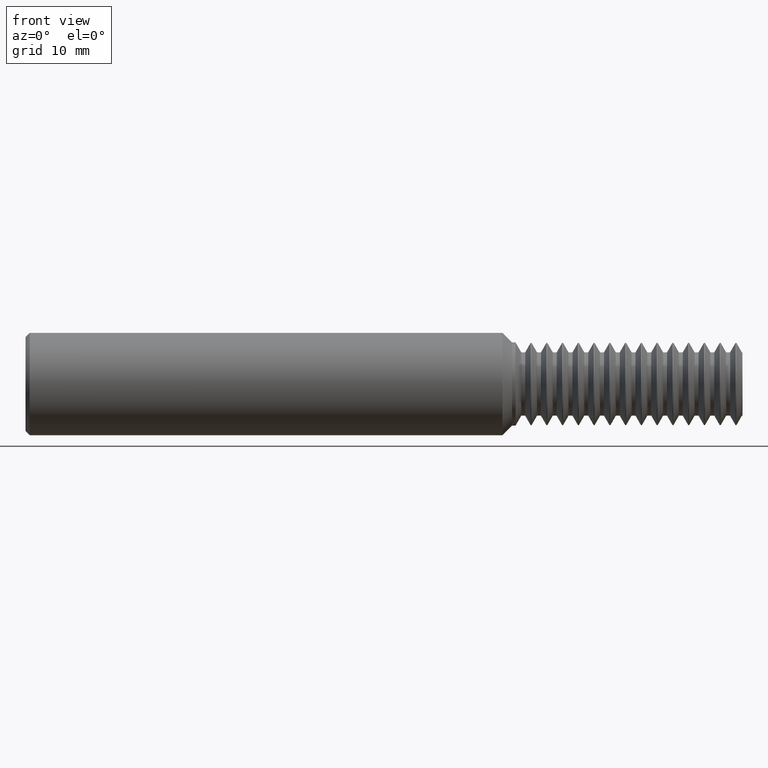
[diagram: clean part render]
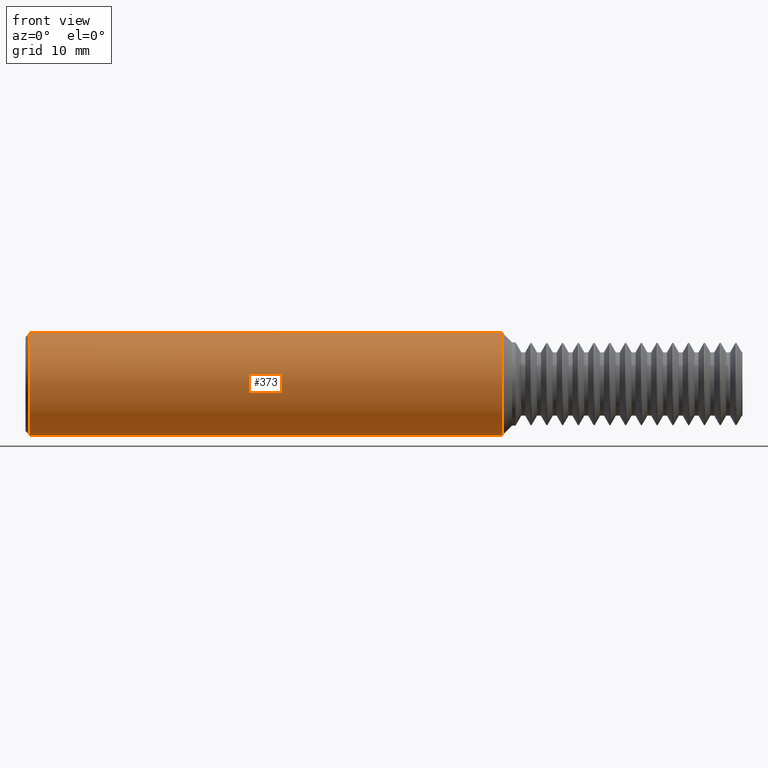
[diagram: same view with one face highlighted and labeled with its STEP entity id]
A machine part, front view. The second image highlights one B-rep face of the part: STEP entity #373.
In plain terms, the highlighted cylindrical surface (partial cylindrical patch) has radius 6.3462 mm, axis along (-1, -0, -0).
Its self-contained STEP definition (entity closure, byte-faithful):
#8 = VECTOR ( 'NONE', #1720, 39.37007874015748143 ) ;
#24 = ORIENTED_EDGE ( 'NONE', *, *, #677, .T. ) ;
#36 = VERTEX_POINT ( 'NONE', #2098 ) ;
#142 = ORIENTED_EDGE ( 'NONE', *, *, #2791, .T. ) ;
#145 = CARTESIAN_POINT ( 'NONE',  ( 0.01999999999999893183, 0.000000000000000000, 0.000000000000000000 ) ) ;
#208 = CARTESIAN_POINT ( 'NONE',  ( 2.328149999999999942, 0.000000000000000000, 0.2498499999999999888 ) ) ;
#300 = DIRECTION ( 'NONE',  ( 0.000000000000000000, 0.000000000000000000, -1.000000000000000000 ) ) ;
#370 = ORIENTED_EDGE ( 'NONE', *, *, #2487, .F. ) ;
#373 = ADVANCED_FACE ( 'NONE', ( #588 ), #2080, .T. ) ;
#415 = CARTESIAN_POINT ( 'NONE',  ( 0.01999999999999893183, 0.000000000000000000, -0.2498499999999999888 ) ) ;
#444 = EDGE_LOOP ( 'NONE', ( #370, #142, #24, #2977 ) ) ;
#574 = CIRCLE ( 'NONE', #997, 0.2498499999999999888 ) ;
#588 = FACE_OUTER_BOUND ( 'NONE', #444, .T. ) ;
#677 = EDGE_CURVE ( 'NONE', #2206, #36, #3209, .T. ) ;
#894 = VERTEX_POINT ( 'NONE', #415 ) ;
#997 = AXIS2_PLACEMENT_3D ( 'NONE', #145, #2539, #300 ) ;
#1096 = DIRECTION ( 'NONE',  ( -1.000000000000000000, -0.000000000000000000, -0.000000000000000000 ) ) ;
#1584 = DIRECTION ( 'NONE',  ( 0.000000000000000000, 0.000000000000000000, 1.000000000000000000 ) ) ;
#1611 = CARTESIAN_POINT ( 'NONE',  ( 2.328149999999999942, 0.000000000000000000, 0.000000000000000000 ) ) ;
#1693 = VECTOR ( 'NONE', #1735, 39.37007874015748143 ) ;
#1720 = DIRECTION ( 'NONE',  ( -1.000000000000000000, -0.000000000000000000, -0.000000000000000000 ) ) ;
#1725 = AXIS2_PLACEMENT_3D ( 'NONE', #2803, #1854, #2094 ) ;
#1735 = DIRECTION ( 'NONE',  ( -1.000000000000000000, -0.000000000000000000, -0.000000000000000000 ) ) ;
#1854 = DIRECTION ( 'NONE',  ( -1.000000000000000000, -0.000000000000000000, -0.000000000000000000 ) ) ;
#2007 = EDGE_CURVE ( 'NONE', #36, #894, #574, .T. ) ;
#2016 = CARTESIAN_POINT ( 'NONE',  ( 0.000000000000000000, 0.000000000000000000, 0.2498499999999999888 ) ) ;
#2080 = CYLINDRICAL_SURFACE ( 'NONE', #1725, 0.2498499999999999888 ) ;
#2094 = DIRECTION ( 'NONE',  ( 0.000000000000000000, 0.000000000000000000, 1.000000000000000000 ) ) ;
#2098 = CARTESIAN_POINT ( 'NONE',  ( 0.01999999999999893183, 3.059780027669661931E-17, 0.2498499999999999888 ) ) ;
#2146 = CARTESIAN_POINT ( 'NONE',  ( 0.000000000000000000, 3.059780027669661931E-17, -0.2498499999999999888 ) ) ;
#2206 = VERTEX_POINT ( 'NONE', #208 ) ;
#2341 = CIRCLE ( 'NONE', #3167, 0.2498499999999999888 ) ;
#2487 = EDGE_CURVE ( 'NONE', #2764, #894, #2900, .T. ) ;
#2539 = DIRECTION ( 'NONE',  ( 1.000000000000000000, 0.000000000000000000, 0.000000000000000000 ) ) ;
#2764 = VERTEX_POINT ( 'NONE', #2783 ) ;
#2783 = CARTESIAN_POINT ( 'NONE',  ( 2.328149999999999942, 3.059780027669661931E-17, -0.2498499999999999888 ) ) ;
#2791 = EDGE_CURVE ( 'NONE', #2764, #2206, #2341, .T. ) ;
#2803 = CARTESIAN_POINT ( 'NONE',  ( 0.000000000000000000, 0.000000000000000000, 0.000000000000000000 ) ) ;
#2900 = LINE ( 'NONE', #2146, #8 ) ;
#2977 = ORIENTED_EDGE ( 'NONE', *, *, #2007, .T. ) ;
#3167 = AXIS2_PLACEMENT_3D ( 'NONE', #1611, #1096, #1584 ) ;
#3209 = LINE ( 'NONE', #2016, #1693 ) ;